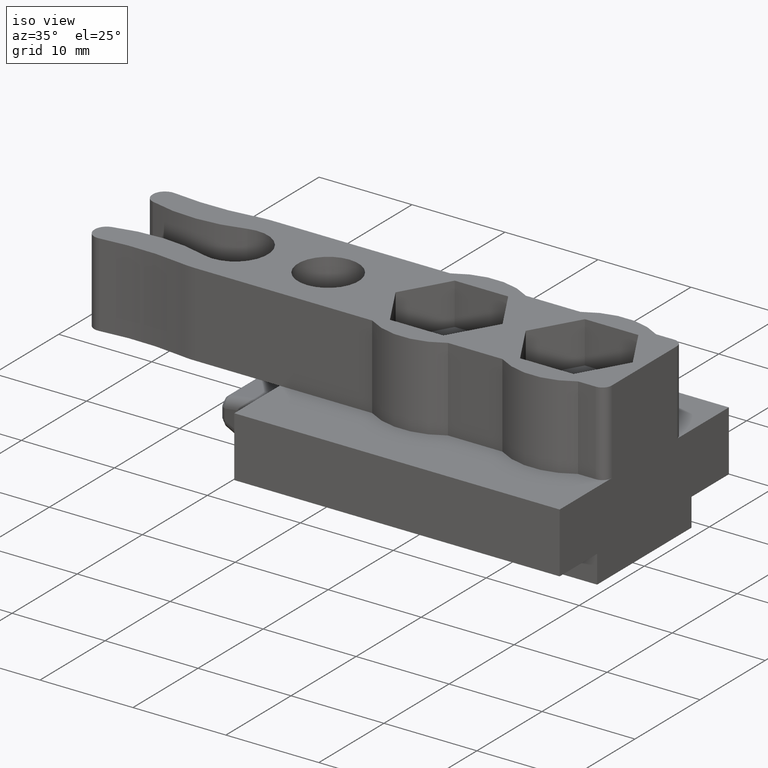
[diagram: clean part render]
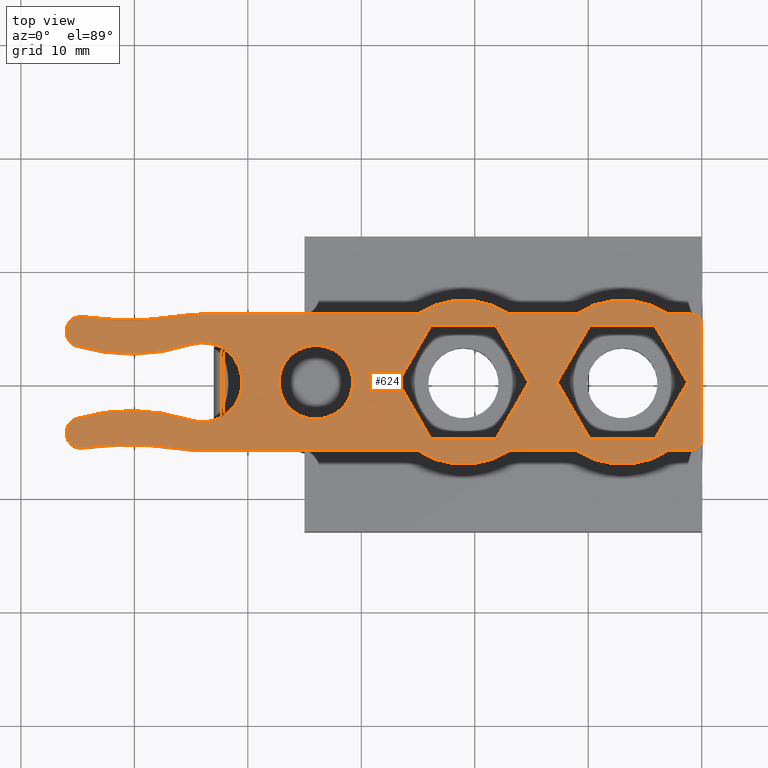
[diagram: tour spotlight — one face highlighted and labeled with its STEP entity id]
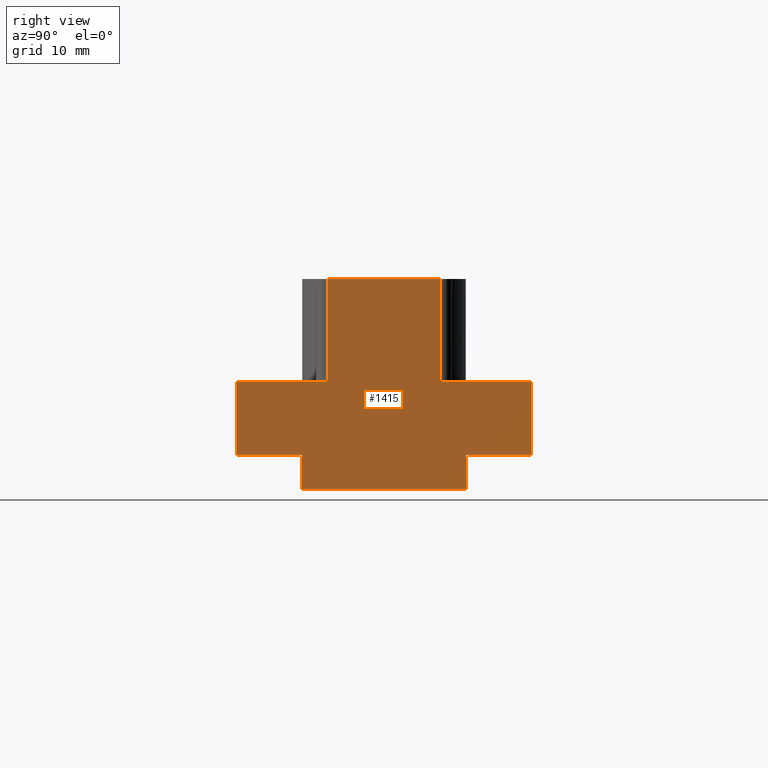
[diagram: tour spotlight — one face highlighted and labeled with its STEP entity id]
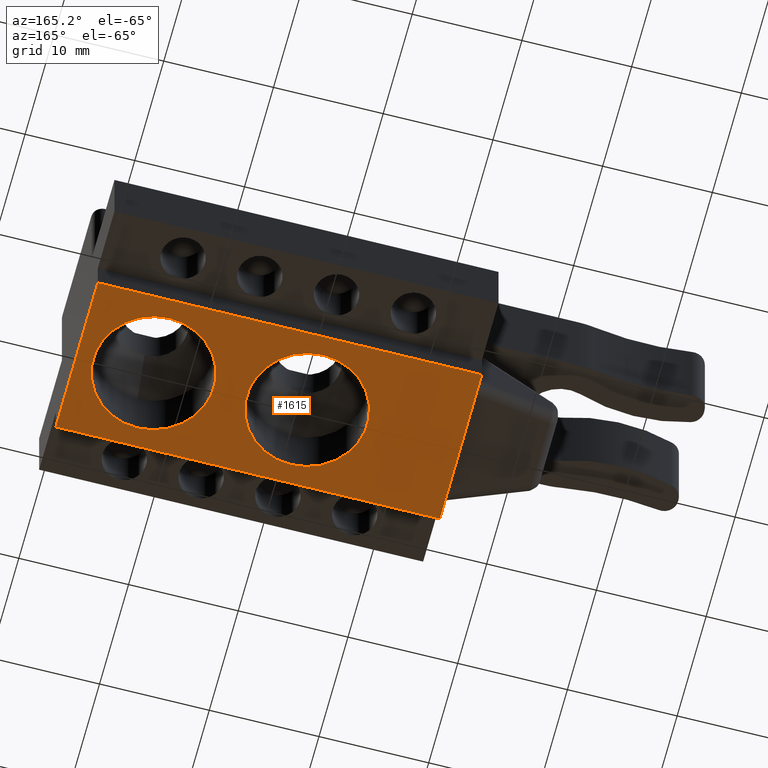
[diagram: tour spotlight — one face highlighted and labeled with its STEP entity id]
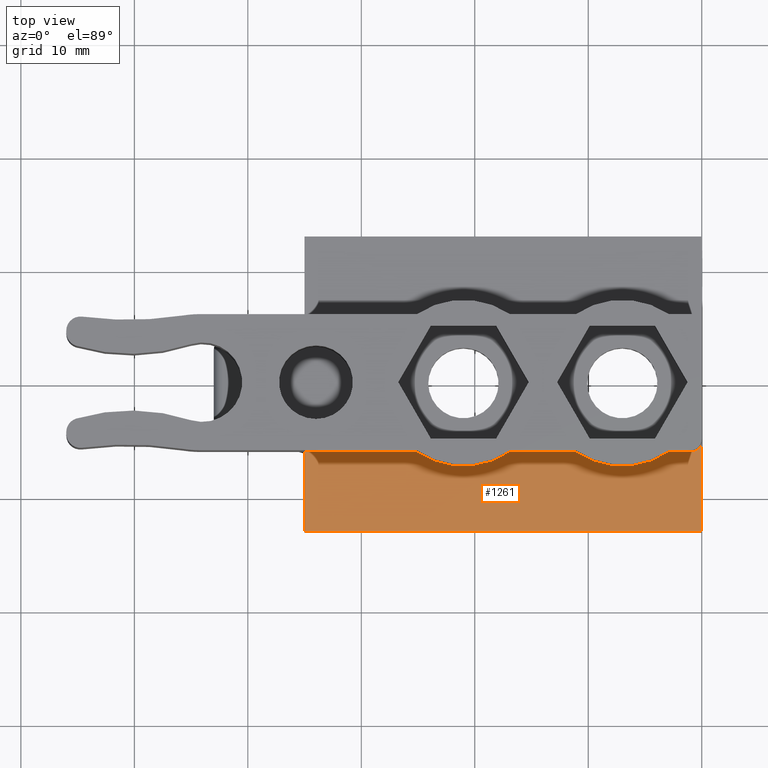
[diagram: tour spotlight — one face highlighted and labeled with its STEP entity id]
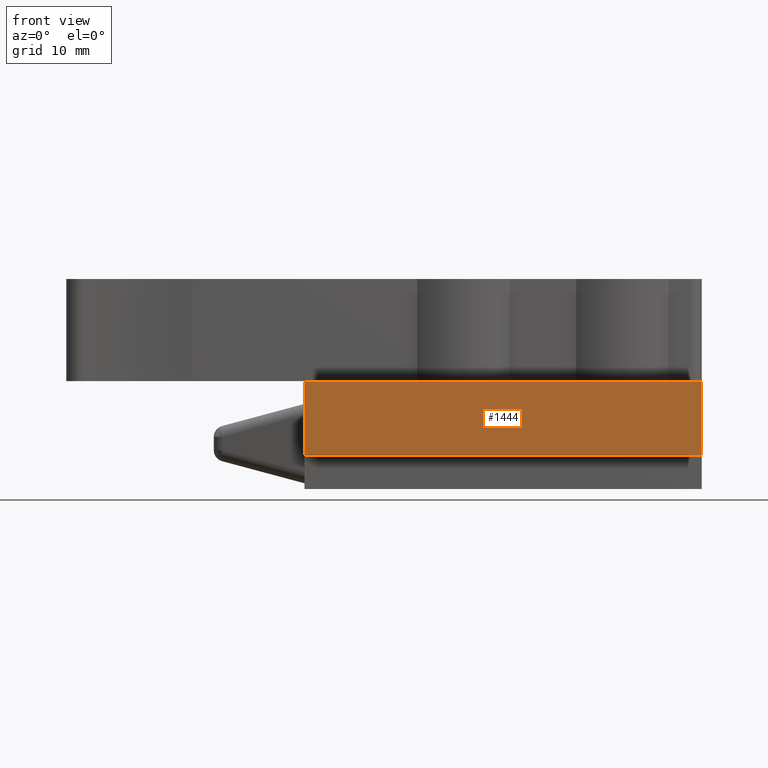
[diagram: tour spotlight — one face highlighted and labeled with its STEP entity id]
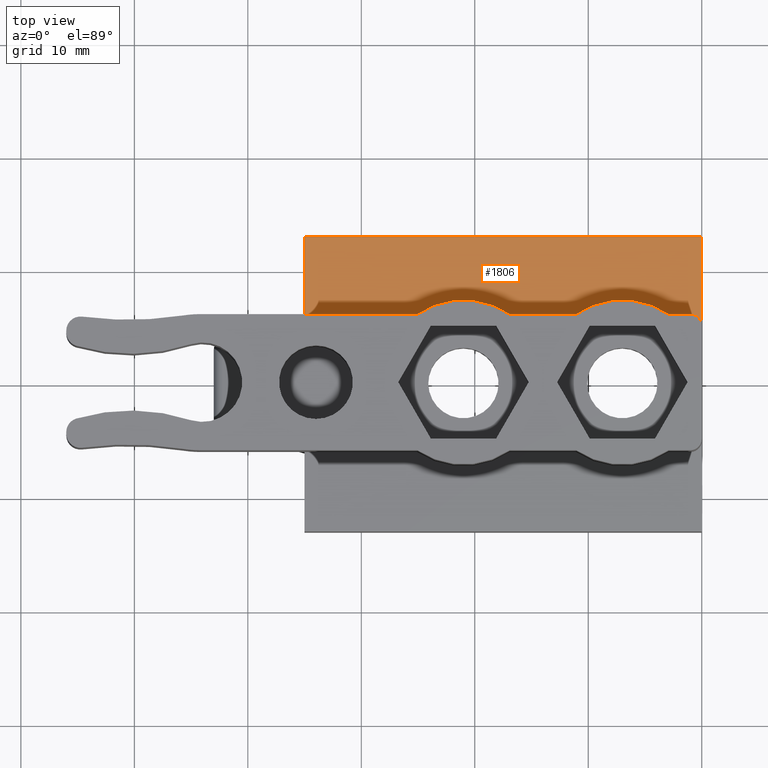
[diagram: tour spotlight — one face highlighted and labeled with its STEP entity id]
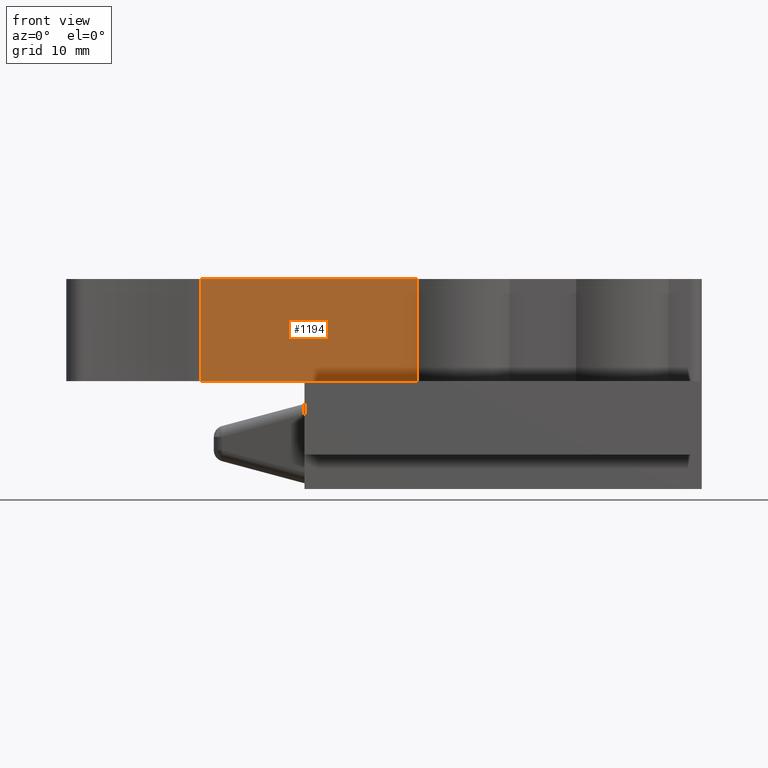
[diagram: tour spotlight — one face highlighted and labeled with its STEP entity id]
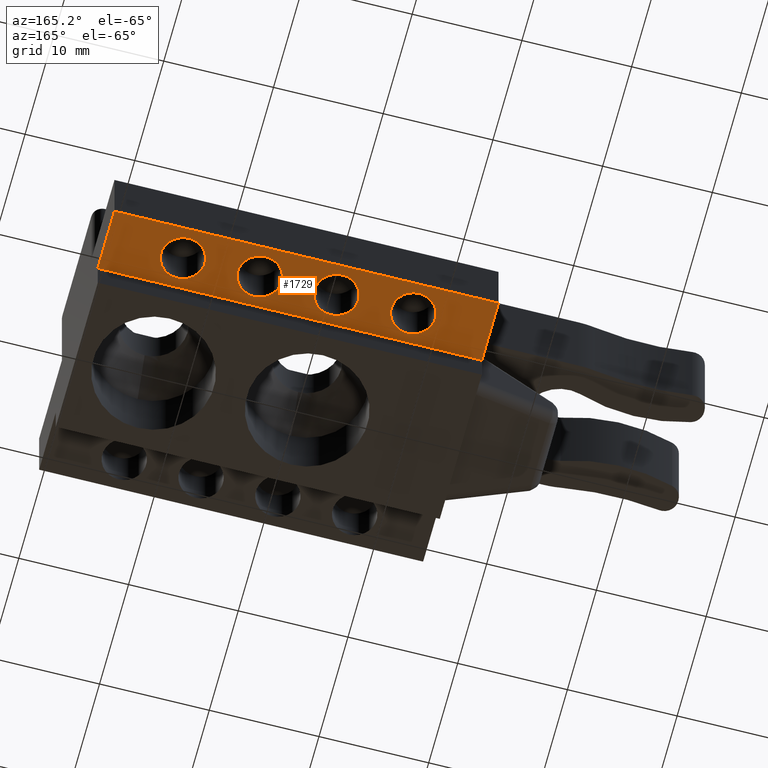
[diagram: tour spotlight — one face highlighted and labeled with its STEP entity id]
A machine part: a face-by-face anatomy tour. The part has 93 B-rep faces; the first image is the clean iso view, then the 8 largest visible faces are spotlighted one at a time (largest first), each with its STEP entity span.

Face 1 — top view, entity #624. In plain terms, the highlighted planar face has unit normal (0, 0, 1).
Definition (entity closure, byte-faithful):
#231=CARTESIAN_POINT('',(-45.000000889447996,-3.354101736757125,18.500000000000000));
#232=VERTEX_POINT('',#231);
#239=CARTESIAN_POINT('',(-45.000000889447904,3.354101736757164,18.500000000000000));
#240=VERTEX_POINT('',#239);
#241=CARTESIAN_POINT('',(-44.000000119706897,4.440892E-015,18.500000000000000));
#242=DIRECTION('',(0.0,0.0,-1.0));
#243=DIRECTION('',(-1.0,0.0,0.0));
#244=AXIS2_PLACEMENT_3D('',#241,#242,#243);
#245=CIRCLE('',#244,3.500000000000000);
#246=EDGE_CURVE('',#240,#232,#245,.T.);
#271=CARTESIAN_POINT('',(-55.108938845946696,-3.205488744432877,18.500000000000000));
#272=VERTEX_POINT('',#271);
#279=CARTESIAN_POINT('',(-50.289714340769798,-19.281571032246909,18.500000000000000));
#280=DIRECTION('',(0.0,0.0,1.0));
#281=DIRECTION('',(-1.0,0.0,0.0));
#282=AXIS2_PLACEMENT_3D('',#279,#280,#281);
#283=CIRCLE('',#282,16.782888504541301);
#284=EDGE_CURVE('',#232,#272,#283,.T.);
#290=CARTESIAN_POINT('',(-58.799999999999997,-7.957519532952130,18.500000000000000));
#291=DIRECTION('',(0.0,0.0,1.0));
#292=DIRECTION('',(1.0,0.0,0.0));
#293=AXIS2_PLACEMENT_3D('',#290,#291,#292);
#294=PLANE('',#293);
#295=CARTESIAN_POINT('',(-56.0,4.535734539249987,18.500000000000000));
#296=VERTEX_POINT('',#295);
#297=CARTESIAN_POINT('',(-56.0,4.402845376715225,18.500000000000000));
#298=VERTEX_POINT('',#297);
#299=CARTESIAN_POINT('',(-56.0,4.535734539249987,18.500000000000000));
#300=DIRECTION('',(0.0,-1.0,0.0));
#301=VECTOR('',#300,0.132889162534762);
#302=LINE('',#299,#301);
#303=EDGE_CURVE('',#296,#298,#302,.T.);
#304=ORIENTED_EDGE('',*,*,#303,.T.);
#305=CARTESIAN_POINT('',(-55.108938845946696,3.205488744432884,18.500000000000000));
#306=VERTEX_POINT('',#305);
#307=CARTESIAN_POINT('',(-54.750000000000000,4.402845376715225,18.500000000000000));
#308=DIRECTION('',(0.0,0.0,1.0));
#309=DIRECTION('',(1.0,0.0,0.0));
#310=AXIS2_PLACEMENT_3D('',#307,#308,#309);
#311=CIRCLE('',#310,1.250000000000000);
#312=EDGE_CURVE('',#298,#306,#311,.T.);
#313=ORIENTED_EDGE('',*,*,#312,.T.);
#314=CARTESIAN_POINT('',(-50.289714340769798,19.281571032246994,18.500000000000000));
#315=DIRECTION('',(0.0,0.0,1.0));
#316=DIRECTION('',(-1.0,0.0,0.0));
#317=AXIS2_PLACEMENT_3D('',#314,#315,#316);
#318=CIRCLE('',#317,16.782888504541301);
#319=EDGE_CURVE('',#306,#240,#318,.T.);
#320=ORIENTED_EDGE('',*,*,#319,.T.);
#321=ORIENTED_EDGE('',*,*,#246,.T.);
#322=ORIENTED_EDGE('',*,*,#284,.T.);
#323=CARTESIAN_POINT('',(-56.0,-4.402845376715215,18.500000000000000));
#324=VERTEX_POINT('',#323);
#325=CARTESIAN_POINT('',(-54.750000000000000,-4.402845376715215,18.500000000000000));
#326=DIRECTION('',(0.0,0.0,1.0));
#327=DIRECTION('',(1.0,0.0,0.0));
#328=AXIS2_PLACEMENT_3D('',#325,#326,#327);
#329=CIRCLE('',#328,1.250000000000000);
#330=EDGE_CURVE('',#272,#324,#329,.T.);
#331=ORIENTED_EDGE('',*,*,#330,.T.);
#332=CARTESIAN_POINT('',(-56.0,-4.535734539249976,18.500000000000000));
#333=VERTEX_POINT('',#332);
#334=CARTESIAN_POINT('',(-56.0,-4.402845376715217,18.500000000000000));
#335=DIRECTION('',(0.0,-1.0,0.0));
#336=VECTOR('',#335,0.132889162534759);
#337=LINE('',#334,#336);
#338=EDGE_CURVE('',#324,#333,#337,.T.);
#339=ORIENTED_EDGE('',*,*,#338,.T.);
#340=CARTESIAN_POINT('',(-54.582677157082500,-5.774485146207605,18.500000000000000));
#341=VERTEX_POINT('',#340);
#342=CARTESIAN_POINT('',(-54.750000000000000,-4.535734539249976,18.500000000000000));
#343=DIRECTION('',(0.0,0.0,1.0));
#344=DIRECTION('',(1.0,0.0,0.0));
#345=AXIS2_PLACEMENT_3D('',#342,#343,#344);
#346=CIRCLE('',#345,1.250000000000000);
#347=EDGE_CURVE('',#333,#341,#346,.T.);
#348=ORIENTED_EDGE('',*,*,#347,.T.);
#349=CARTESIAN_POINT('',(-45.722203208436099,-5.876543194964304,18.500000000000000));
#350=VERTEX_POINT('',#349);
#351=CARTESIAN_POINT('',(-50.500000444723796,-35.999995108038405,18.500000000000000));
#352=DIRECTION('',(0.0,0.0,1.0));
#353=DIRECTION('',(-1.0,0.0,0.0));
#354=AXIS2_PLACEMENT_3D('',#351,#352,#353);
#355=CIRCLE('',#354,30.499995108038398);
#356=EDGE_CURVE('',#350,#341,#355,.T.);
#357=ORIENTED_EDGE('',*,*,#356,.F.);
#358=CARTESIAN_POINT('',(-44.155712060039704,-6.000000000000005,18.500000000000000));
#359=VERTEX_POINT('',#358);
#360=CARTESIAN_POINT('',(-44.155712060039704,3.999999999999998,18.500000000000000));
#361=DIRECTION('',(0.0,0.0,1.0));
#362=DIRECTION('',(1.0,0.0,0.0));
#363=AXIS2_PLACEMENT_3D('',#360,#361,#362);
#364=CIRCLE('',#363,10.0);
#365=EDGE_CURVE('',#350,#359,#364,.T.);
#366=ORIENTED_EDGE('',*,*,#365,.T.);
#367=CARTESIAN_POINT('',(-25.069705149024959,-6.000000000000005,18.500000000000000));
#368=VERTEX_POINT('',#367);
#369=CARTESIAN_POINT('',(-25.069705149024959,-6.000000000000005,18.500000000000000));
#370=DIRECTION('',(-1.0,0.0,0.0));
#371=VECTOR('',#370,19.086006911014746);
#372=LINE('',#369,#371);
#373=EDGE_CURVE('',#368,#359,#372,.T.);
#374=ORIENTED_EDGE('',*,*,#373,.F.);
#375=CARTESIAN_POINT('',(-16.930294850975098,-6.000000000000005,18.500000000000000));
#376=VERTEX_POINT('',#375);
#377=CARTESIAN_POINT('',(-21.000000000000028,4.440892E-015,18.500000000000000));
#378=DIRECTION('',(0.0,0.0,1.0));
#379=DIRECTION('',(1.0,0.0,0.0));
#380=AXIS2_PLACEMENT_3D('',#377,#378,#379);
#381=CIRCLE('',#380,7.250000000000000);
#382=EDGE_CURVE('',#368,#376,#381,.T.);
#383=ORIENTED_EDGE('',*,*,#382,.T.);
#384=CARTESIAN_POINT('',(-11.069705149024998,-6.000000000000005,18.500000000000000));
#385=VERTEX_POINT('',#384);
#386=CARTESIAN_POINT('',(-11.069705149024998,-6.000000000000005,18.500000000000000));
#387=DIRECTION('',(-1.0,0.0,0.0));
#388=VECTOR('',#387,5.860589701950101);
#389=LINE('',#386,#388);
#390=EDGE_CURVE('',#385,#376,#389,.T.);
#391=ORIENTED_EDGE('',*,*,#390,.F.);
#392=CARTESIAN_POINT('',(-2.930294850975095,-6.000000000000005,18.500000000000000));
#393=VERTEX_POINT('',#392);
#394=CARTESIAN_POINT('',(-7.0,4.440892E-015,18.500000000000000));
#395=DIRECTION('',(0.0,0.0,1.0));
#396=DIRECTION('',(1.0,0.0,0.0));
#397=AXIS2_PLACEMENT_3D('',#394,#395,#396);
#398=CIRCLE('',#397,7.250000000000000);
#399=EDGE_CURVE('',#385,#393,#398,.T.);
#400=ORIENTED_EDGE('',*,*,#399,.T.);
#401=CARTESIAN_POINT('',(-1.0,-6.000000000000005,18.500000000000000));
#402=VERTEX_POINT('',#401);
#403=CARTESIAN_POINT('',(-2.930294850975095,-6.000000000000005,18.500000000000000));
#404=DIRECTION('',(1.0,0.0,0.0));
#405=VECTOR('',#404,1.930294850975095);
#406=LINE('',#403,#405);
#407=EDGE_CURVE('',#393,#402,#406,.T.);
#408=ORIENTED_EDGE('',*,*,#407,.T.);
#409=CARTESIAN_POINT('',(0.0,-4.999999999999996,18.500000000000000));
#410=VERTEX_POINT('',#409);
#411=CARTESIAN_POINT('',(-1.0,-4.999999999999996,18.500000000000000));
#412=DIRECTION('',(0.0,0.0,1.0));
#413=DIRECTION('',(1.0,0.0,0.0));
#414=AXIS2_PLACEMENT_3D('',#411,#412,#413);
#415=CIRCLE('',#414,1.0);
#416=EDGE_CURVE('',#402,#410,#415,.T.);
#417=ORIENTED_EDGE('',*,*,#416,.T.);
#418=CARTESIAN_POINT('',(0.0,4.999999999999999,18.500000000000000));
#419=VERTEX_POINT('',#418);
#420=CARTESIAN_POINT('',(0.0,-4.999999999999996,18.500000000000000));
#421=DIRECTION('',(0.0,1.0,0.0));
#422=VECTOR('',#421,9.999999999999996);
#423=LINE('',#420,#422);
#424=EDGE_CURVE('',#410,#419,#423,.T.);
#425=ORIENTED_EDGE('',*,*,#424,.T.);
#426=CARTESIAN_POINT('',(-1.0,6.000000000000004,18.500000000000000));
#427=VERTEX_POINT('',#426);
#428=CARTESIAN_POINT('',(-1.0,4.999999999999999,18.500000000000000));
#429=DIRECTION('',(0.0,0.0,1.0));
#430=DIRECTION('',(1.0,0.0,0.0));
#431=AXIS2_PLACEMENT_3D('',#428,#429,#430);
#432=CIRCLE('',#431,1.0);
#433=EDGE_CURVE('',#419,#427,#432,.T.);
#434=ORIENTED_EDGE('',*,*,#433,.T.);
#435=CARTESIAN_POINT('',(-2.930294850975095,6.000000000000004,18.500000000000000));
#436=VERTEX_POINT('',#435);
#437=CARTESIAN_POINT('',(-2.930294850975095,6.000000000000004,18.500000000000000));
#438=DIRECTION('',(1.0,0.0,0.0));
#439=VECTOR('',#438,1.930294850975095);
#440=LINE('',#437,#439);
#441=EDGE_CURVE('',#436,#427,#440,.T.);
#442=ORIENTED_EDGE('',*,*,#441,.F.);
#443=CARTESIAN_POINT('',(-11.069705149024998,6.000000000000004,18.500000000000000));
#444=VERTEX_POINT('',#443);
#445=CARTESIAN_POINT('',(-7.0,4.440892E-015,18.500000000000000));
#446=DIRECTION('',(0.0,0.0,-1.0));
#447=DIRECTION('',(1.0,0.0,0.0));
#448=AXIS2_PLACEMENT_3D('',#445,#446,#447);
#449=CIRCLE('',#448,7.250000000000000);
#450=EDGE_CURVE('',#444,#436,#449,.T.);
#451=ORIENTED_EDGE('',*,*,#450,.F.);
#452=CARTESIAN_POINT('',(-16.930294850975109,6.000000000000004,18.500000000000000));
#453=VERTEX_POINT('',#452);
#454=CARTESIAN_POINT('',(-16.930294850975109,6.000000000000004,18.500000000000000));
#455=DIRECTION('',(1.0,0.0,0.0));
#456=VECTOR('',#455,5.860589701950111);
#457=LINE('',#454,#456);
#458=EDGE_CURVE('',#453,#444,#457,.T.);
#459=ORIENTED_EDGE('',*,*,#458,.F.);
#460=CARTESIAN_POINT('',(-25.069705149024959,5.999999999999995,18.500000000000000));
#461=VERTEX_POINT('',#460);
#462=CARTESIAN_POINT('',(-21.000000000000028,-5.329071E-015,18.500000000000000));
#463=DIRECTION('',(0.0,0.0,-1.0));
#464=DIRECTION('',(1.0,0.0,0.0));
#465=AXIS2_PLACEMENT_3D('',#462,#463,#464);
#466=CIRCLE('',#465,7.250000000000000);
#467=EDGE_CURVE('',#461,#453,#466,.T.);
#468=ORIENTED_EDGE('',*,*,#467,.F.);
#469=CARTESIAN_POINT('',(-44.155712060039804,5.999999999999995,18.500000000000000));
#470=VERTEX_POINT('',#469);
#471=CARTESIAN_POINT('',(-25.069705149024959,5.999999999999995,18.500000000000000));
#472=DIRECTION('',(-1.0,0.0,0.0));
#473=VECTOR('',#472,19.086006911014845);
#474=LINE('',#471,#473);
#475=EDGE_CURVE('',#461,#470,#474,.T.);
#476=ORIENTED_EDGE('',*,*,#475,.T.);
#477=CARTESIAN_POINT('',(-45.722203208436198,5.876543194964304,18.500000000000000));
#478=VERTEX_POINT('',#477);
#479=CARTESIAN_POINT('',(-44.155712060039804,-4.000000000000004,18.500000000000000));
#480=DIRECTION('',(0.0,0.0,1.0));
#481=DIRECTION('',(1.0,0.0,0.0));
#482=AXIS2_PLACEMENT_3D('',#479,#480,#481);
#483=CIRCLE('',#482,10.0);
#484=EDGE_CURVE('',#470,#478,#483,.T.);
#485=ORIENTED_EDGE('',*,*,#484,.T.);
#486=CARTESIAN_POINT('',(-54.582677157082500,5.774485146207654,18.500000000000000));
#487=VERTEX_POINT('',#486);
#488=CARTESIAN_POINT('',(-50.500000444723796,35.999995108038391,18.500000000000000));
#489=DIRECTION('',(0.0,0.0,1.0));
#490=DIRECTION('',(-1.0,0.0,0.0));
#491=AXIS2_PLACEMENT_3D('',#488,#489,#490);
#492=CIRCLE('',#491,30.499995108038398);
#493=EDGE_CURVE('',#487,#478,#492,.T.);
#494=ORIENTED_EDGE('',*,*,#493,.F.);
#495=CARTESIAN_POINT('',(-54.750000000000000,4.535734539249987,18.500000000000000));
#496=DIRECTION('',(0.0,0.0,1.0));
#497=DIRECTION('',(1.0,0.0,0.0));
#498=AXIS2_PLACEMENT_3D('',#495,#496,#497);
#499=CIRCLE('',#498,1.250000000000000);
#500=EDGE_CURVE('',#487,#296,#499,.T.);
#501=ORIENTED_EDGE('',*,*,#500,.T.);
#502=EDGE_LOOP('',(#304,#313,#320,#321,#322,#331,#339,#348,#357,#366,#374,#383,#391,#400,#408,#417,#425,#434,#442,#451,#459,#468,#476,#485,#494,#501));
#503=FACE_OUTER_BOUND('',#502,.T.);
#504=CARTESIAN_POINT('',(-23.875000000000036,4.979646071760523,18.500000000000000));
#505=VERTEX_POINT('',#504);
#506=CARTESIAN_POINT('',(-26.750000000000028,-5.329071E-015,18.500000000000000));
#507=VERTEX_POINT('',#506);
#508=CARTESIAN_POINT('',(-23.875000000000036,4.979646071760522,18.500000000000000));
#509=DIRECTION('',(-0.500000000000000,-0.866025403784439,0.0));
#510=VECTOR('',#509,5.750000000000001);
#511=LINE('',#508,#510);
#512=EDGE_CURVE('',#505,#507,#511,.T.);
#513=ORIENTED_EDGE('',*,*,#512,.F.);
#514=CARTESIAN_POINT('',(-18.125000000000036,4.979646071760520,18.500000000000000));
#515=VERTEX_POINT('',#514);
#516=CARTESIAN_POINT('',(-18.125000000000036,4.979646071760523,18.500000000000000));
#517=DIRECTION('',(-1.0,0.0,0.0));
#518=VECTOR('',#517,5.750000000000000);
#519=LINE('',#516,#518);
#520=EDGE_CURVE('',#515,#505,#519,.T.);
#521=ORIENTED_EDGE('',*,*,#520,.F.);
#522=CARTESIAN_POINT('',(-15.250000000000028,4.440892E-015,18.500000000000000));
#523=VERTEX_POINT('',#522);
#524=CARTESIAN_POINT('',(-15.250000000000028,4.440892E-015,18.500000000000000));
#525=DIRECTION('',(-0.500000000000001,0.866025403784438,0.0));
#526=VECTOR('',#525,5.750000000000001);
#527=LINE('',#524,#526);
#528=EDGE_CURVE('',#523,#515,#527,.T.);
#529=ORIENTED_EDGE('',*,*,#528,.F.);
#530=CARTESIAN_POINT('',(-18.125000000000028,-4.979646071760527,18.500000000000000));
#531=VERTEX_POINT('',#530);
#532=CARTESIAN_POINT('',(-18.125000000000028,-4.979646071760527,18.500000000000000));
#533=DIRECTION('',(0.500000000000000,0.866025403784439,0.0));
#534=VECTOR('',#533,5.750000000000009);
#535=LINE('',#532,#534);
#536=EDGE_CURVE('',#531,#523,#535,.T.);
#537=ORIENTED_EDGE('',*,*,#536,.F.);
#538=CARTESIAN_POINT('',(-23.875000000000028,-4.979646071760527,18.500000000000000));
#539=VERTEX_POINT('',#538);
#540=CARTESIAN_POINT('',(-23.875000000000028,-4.979646071760527,18.500000000000000));
#541=DIRECTION('',(1.0,0.0,0.0));
#542=VECTOR('',#541,5.750000000000000);
#543=LINE('',#540,#542);
#544=EDGE_CURVE('',#539,#531,#543,.T.);
#545=ORIENTED_EDGE('',*,*,#544,.F.);
#546=CARTESIAN_POINT('',(-26.750000000000028,-5.329071E-015,18.500000000000000));
#547=DIRECTION('',(0.500000000000001,-0.866025403784438,0.0));
#548=VECTOR('',#547,5.750000000000001);
#549=LINE('',#546,#548);
#550=EDGE_CURVE('',#507,#539,#549,.T.);
#551=ORIENTED_EDGE('',*,*,#550,.F.);
#552=EDGE_LOOP('',(#513,#521,#529,#537,#545,#551));
#553=FACE_BOUND('',#552,.T.);
#554=CARTESIAN_POINT('',(-12.749999999999998,-5.329071E-015,18.500000000000000));
#555=VERTEX_POINT('',#554);
#556=CARTESIAN_POINT('',(-9.874999999999998,-4.979646071760527,18.500000000000000));
#557=VERTEX_POINT('',#556);
#558=CARTESIAN_POINT('',(-12.749999999999998,-5.329071E-015,18.500000000000000));
#559=DIRECTION('',(0.500000000000001,-0.866025403784438,0.0));
#560=VECTOR('',#559,5.749999999999999);
#561=LINE('',#558,#560);
#562=EDGE_CURVE('',#555,#557,#561,.T.);
#563=ORIENTED_EDGE('',*,*,#562,.F.);
#564=CARTESIAN_POINT('',(-9.874999999999998,4.979646071760520,18.500000000000000));
#565=VERTEX_POINT('',#564);
#566=CARTESIAN_POINT('',(-9.875000000000000,4.979646071760521,18.500000000000000));
#567=DIRECTION('',(-0.500000000000000,-0.866025403784439,0.0));
#568=VECTOR('',#567,5.750000000000003);
#569=LINE('',#566,#568);
#570=EDGE_CURVE('',#565,#555,#569,.T.);
#571=ORIENTED_EDGE('',*,*,#570,.F.);
#572=CARTESIAN_POINT('',(-4.125000000000000,4.979646071760523,18.500000000000000));
#573=VERTEX_POINT('',#572);
#574=CARTESIAN_POINT('',(-4.125000000000000,4.979646071760523,18.500000000000000));
#575=DIRECTION('',(-1.0,0.0,0.0));
#576=VECTOR('',#575,5.749999999999998);
#577=LINE('',#574,#576);
#578=EDGE_CURVE('',#573,#565,#577,.T.);
#579=ORIENTED_EDGE('',*,*,#578,.F.);
#580=CARTESIAN_POINT('',(-1.250000000000000,4.440892E-015,18.500000000000000));
#581=VERTEX_POINT('',#580);
#582=CARTESIAN_POINT('',(-1.250000000000000,4.440892E-015,18.500000000000000));
#583=DIRECTION('',(-0.500000000000000,0.866025403784438,0.0));
#584=VECTOR('',#583,5.749999999999995);
#585=LINE('',#582,#584);
#586=EDGE_CURVE('',#581,#573,#585,.T.);
#587=ORIENTED_EDGE('',*,*,#586,.F.);
#588=CARTESIAN_POINT('',(-4.125000000000000,-4.979646071760527,18.500000000000000));
#589=VERTEX_POINT('',#588);
#590=CARTESIAN_POINT('',(-4.125000000000000,-4.979646071760527,18.500000000000000));
#591=DIRECTION('',(0.500000000000001,0.866025403784438,0.0));
#592=VECTOR('',#591,5.750000000000009);
#593=LINE('',#590,#592);
#594=EDGE_CURVE('',#589,#581,#593,.T.);
#595=ORIENTED_EDGE('',*,*,#594,.F.);
#596=CARTESIAN_POINT('',(-9.874999999999998,-4.979646071760527,18.500000000000000));
#597=DIRECTION('',(1.0,0.0,0.0));
#598=VECTOR('',#597,5.749999999999998);
#599=LINE('',#596,#598);
#600=EDGE_CURVE('',#557,#589,#599,.T.);
#601=ORIENTED_EDGE('',*,*,#600,.F.);
#602=EDGE_LOOP('',(#563,#571,#579,#587,#595,#601));
#603=FACE_BOUND('',#602,.T.);
#604=CARTESIAN_POINT('',(-34.0,-3.249999999999996,18.500000000000000));
#605=VERTEX_POINT('',#604);
#606=CARTESIAN_POINT('',(-34.0,3.250000000000004,18.500000000000000));
#607=VERTEX_POINT('',#606);
#608=CARTESIAN_POINT('',(-34.0,4.440892E-015,18.500000000000000));
#609=DIRECTION('',(0.0,0.0,-1.0));
#610=DIRECTION('',(0.0,-1.0,0.0));
#611=AXIS2_PLACEMENT_3D('',#608,#609,#610);
#612=CIRCLE('',#611,3.250000000000000);
#613=EDGE_CURVE('',#605,#607,#612,.T.);
#614=ORIENTED_EDGE('',*,*,#613,.T.);
#615=CARTESIAN_POINT('',(-34.0,4.440892E-015,18.500000000000000));
#616=DIRECTION('',(0.0,0.0,-1.0));
#617=DIRECTION('',(0.0,-1.0,0.0));
#618=AXIS2_PLACEMENT_3D('',#615,#616,#617);
#619=CIRCLE('',#618,3.250000000000000);
#620=EDGE_CURVE('',#607,#605,#619,.T.);
#621=ORIENTED_EDGE('',*,*,#620,.T.);
#622=EDGE_LOOP('',(#614,#621));
#623=FACE_BOUND('',#622,.T.);
#624=ADVANCED_FACE('',(#503,#553,#603,#623),#294,.T.);

Face 2 — right view, entity #1415. In plain terms, the highlighted planar face has unit normal (1, 0, 0).
Definition (entity closure, byte-faithful):
#409=CARTESIAN_POINT('',(0.0,-4.999999999999996,18.500000000000000));
#410=VERTEX_POINT('',#409);
#418=CARTESIAN_POINT('',(0.0,4.999999999999999,18.500000000000000));
#419=VERTEX_POINT('',#418);
#420=CARTESIAN_POINT('',(0.0,-4.999999999999996,18.500000000000000));
#421=DIRECTION('',(0.0,1.0,0.0));
#422=VECTOR('',#421,9.999999999999996);
#423=LINE('',#420,#422);
#424=EDGE_CURVE('',#410,#419,#423,.T.);
#1200=CARTESIAN_POINT('',(0.0,-13.000000000000007,9.500000000000000));
#1201=VERTEX_POINT('',#1200);
#1208=CARTESIAN_POINT('',(0.0,-4.999999999999996,9.500000000000000));
#1209=VERTEX_POINT('',#1208);
#1210=CARTESIAN_POINT('',(0.0,-13.000000000000007,9.500000000000000));
#1211=DIRECTION('',(0.0,1.0,0.0));
#1212=VECTOR('',#1211,8.000000000000011);
#1213=LINE('',#1210,#1212);
#1214=EDGE_CURVE('',#1201,#1209,#1213,.T.);
#1330=CARTESIAN_POINT('',(0.0,-14.300000000000008,19.425000000000001));
#1331=DIRECTION('',(1.0,0.0,0.0));
#1332=DIRECTION('',(0.0,0.0,-1.0));
#1333=AXIS2_PLACEMENT_3D('',#1330,#1331,#1332);
#1334=PLANE('',#1333);
#1335=ORIENTED_EDGE('',*,*,#424,.F.);
#1336=CARTESIAN_POINT('',(0.0,-4.999999999999996,18.500000000000000));
#1337=DIRECTION('',(0.0,0.0,-1.0));
#1338=VECTOR('',#1337,9.0);
#1339=LINE('',#1336,#1338);
#1340=EDGE_CURVE('',#410,#1209,#1339,.T.);
#1341=ORIENTED_EDGE('',*,*,#1340,.T.);
#1342=ORIENTED_EDGE('',*,*,#1214,.F.);
#1343=CARTESIAN_POINT('',(0.0,-13.000000000000007,3.0));
#1344=VERTEX_POINT('',#1343);
#1345=CARTESIAN_POINT('',(0.0,-13.000000000000007,3.0));
#1346=DIRECTION('',(0.0,0.0,1.0));
#1347=VECTOR('',#1346,6.500000000000000);
#1348=LINE('',#1345,#1347);
#1349=EDGE_CURVE('',#1344,#1201,#1348,.T.);
#1350=ORIENTED_EDGE('',*,*,#1349,.F.);
#1351=CARTESIAN_POINT('',(0.0,-7.250000000000005,3.0));
#1352=VERTEX_POINT('',#1351);
#1353=CARTESIAN_POINT('',(0.0,-7.250000000000005,3.0));
#1354=DIRECTION('',(0.0,-1.0,0.0));
#1355=VECTOR('',#1354,5.750000000000002);
#1356=LINE('',#1353,#1355);
#1357=EDGE_CURVE('',#1352,#1344,#1356,.T.);
#1358=ORIENTED_EDGE('',*,*,#1357,.F.);
#1359=CARTESIAN_POINT('',(0.0,-7.250000000000005,0.0));
#1360=VERTEX_POINT('',#1359);
#1361=CARTESIAN_POINT('',(0.0,-7.250000000000005,0.0));
#1362=DIRECTION('',(0.0,0.0,1.0));
#1363=VECTOR('',#1362,3.0);
#1364=LINE('',#1361,#1363);
#1365=EDGE_CURVE('',#1360,#1352,#1364,.T.);
#1366=ORIENTED_EDGE('',*,*,#1365,.F.);
#1367=CARTESIAN_POINT('',(0.0,7.250000000000004,0.0));
#1368=VERTEX_POINT('',#1367);
#1369=CARTESIAN_POINT('',(0.0,-7.250000000000005,0.0));
#1370=DIRECTION('',(0.0,1.0,0.0));
#1371=VECTOR('',#1370,14.500000000000011);
#1372=LINE('',#1369,#1371);
#1373=EDGE_CURVE('',#1360,#1368,#1372,.T.);
#1374=ORIENTED_EDGE('',*,*,#1373,.T.);
#1375=CARTESIAN_POINT('',(0.0,7.250000000000004,3.0));
#1376=VERTEX_POINT('',#1375);
#1377=CARTESIAN_POINT('',(0.0,7.250000000000004,0.0));
#1378=DIRECTION('',(0.0,0.0,1.0));
#1379=VECTOR('',#1378,3.0);
#1380=LINE('',#1377,#1379);
#1381=EDGE_CURVE('',#1368,#1376,#1380,.T.);
#1382=ORIENTED_EDGE('',*,*,#1381,.T.);
#1383=CARTESIAN_POINT('',(0.0,13.000000000000004,3.0));
#1384=VERTEX_POINT('',#1383);
#1385=CARTESIAN_POINT('',(0.0,7.250000000000004,3.0));
#1386=DIRECTION('',(0.0,1.0,0.0));
#1387=VECTOR('',#1386,5.749999999999999);
#1388=LINE('',#1385,#1387);
#1389=EDGE_CURVE('',#1376,#1384,#1388,.T.);
#1390=ORIENTED_EDGE('',*,*,#1389,.T.);
#1391=CARTESIAN_POINT('',(0.0,13.000000000000004,9.500000000000000));
#1392=VERTEX_POINT('',#1391);
#1393=CARTESIAN_POINT('',(0.0,13.000000000000004,3.0));
#1394=DIRECTION('',(0.0,0.0,1.0));
#1395=VECTOR('',#1394,6.500000000000000);
#1396=LINE('',#1393,#1395);
#1397=EDGE_CURVE('',#1384,#1392,#1396,.T.);
#1398=ORIENTED_EDGE('',*,*,#1397,.T.);
#1399=CARTESIAN_POINT('',(0.0,4.999999999999999,9.500000000000000));
#1400=VERTEX_POINT('',#1399);
#1401=CARTESIAN_POINT('',(0.0,13.000000000000004,9.500000000000000));
#1402=DIRECTION('',(0.0,-1.0,0.0));
#1403=VECTOR('',#1402,8.000000000000004);
#1404=LINE('',#1401,#1403);
#1405=EDGE_CURVE('',#1392,#1400,#1404,.T.);
#1406=ORIENTED_EDGE('',*,*,#1405,.T.);
#1407=CARTESIAN_POINT('',(0.0,4.999999999999999,9.500000000000000));
#1408=DIRECTION('',(0.0,0.0,1.0));
#1409=VECTOR('',#1408,9.0);
#1410=LINE('',#1407,#1409);
#1411=EDGE_CURVE('',#1400,#419,#1410,.T.);
#1412=ORIENTED_EDGE('',*,*,#1411,.T.);
#1413=EDGE_LOOP('',(#1335,#1341,#1342,#1350,#1358,#1366,#1374,#1382,#1390,#1398,#1406,#1412));
#1414=FACE_OUTER_BOUND('',#1413,.T.);
#1415=ADVANCED_FACE('',(#1414),#1334,.T.);

Face 3 — auxiliary view, entity #1615. In plain terms, the highlighted planar face has unit normal (0, 0, 1).
Definition (entity closure, byte-faithful):
#49=CARTESIAN_POINT('',(-35.0,7.250000000000004,0.0));
#50=VERTEX_POINT('',#49);
#57=CARTESIAN_POINT('',(-35.0,-7.250000000000005,0.0));
#58=VERTEX_POINT('',#57);
#59=CARTESIAN_POINT('',(-35.0,7.250000000000004,0.0));
#60=DIRECTION('',(0.0,-1.0,0.0));
#61=VECTOR('',#60,14.500000000000009);
#62=LINE('',#59,#61);
#63=EDGE_CURVE('',#50,#58,#62,.T.);
#1359=CARTESIAN_POINT('',(0.0,-7.250000000000005,0.0));
#1360=VERTEX_POINT('',#1359);
#1367=CARTESIAN_POINT('',(0.0,7.250000000000004,0.0));
#1368=VERTEX_POINT('',#1367);
#1369=CARTESIAN_POINT('',(0.0,-7.250000000000005,0.0));
#1370=DIRECTION('',(0.0,1.0,0.0));
#1371=VECTOR('',#1370,14.500000000000011);
#1372=LINE('',#1369,#1371);
#1373=EDGE_CURVE('',#1360,#1368,#1372,.T.);
#1547=CARTESIAN_POINT('',(-35.0,-7.250000000000005,0.0));
#1548=DIRECTION('',(1.0,0.0,0.0));
#1549=VECTOR('',#1548,35.0);
#1550=LINE('',#1547,#1549);
#1551=EDGE_CURVE('',#58,#1360,#1550,.T.);
#1559=CARTESIAN_POINT('',(-56.0,-13.000000000000007,0.0));
#1560=DIRECTION('',(0.0,0.0,1.0));
#1561=DIRECTION('',(1.0,0.0,0.0));
#1562=AXIS2_PLACEMENT_3D('',#1559,#1560,#1561);
#1563=PLANE('',#1562);
#1564=ORIENTED_EDGE('',*,*,#1551,.F.);
#1565=ORIENTED_EDGE('',*,*,#63,.F.);
#1566=CARTESIAN_POINT('',(0.0,7.250000000000004,0.0));
#1567=DIRECTION('',(-1.0,0.0,0.0));
#1568=VECTOR('',#1567,35.0);
#1569=LINE('',#1566,#1568);
#1570=EDGE_CURVE('',#1368,#50,#1569,.T.);
#1571=ORIENTED_EDGE('',*,*,#1570,.F.);
#1572=ORIENTED_EDGE('',*,*,#1373,.F.);
#1573=EDGE_LOOP('',(#1564,#1565,#1571,#1572));
#1574=FACE_OUTER_BOUND('',#1573,.T.);
#1575=CARTESIAN_POINT('',(-7.0,5.500000000000004,0.0));
#1576=VERTEX_POINT('',#1575);
#1577=CARTESIAN_POINT('',(-7.0,-5.499999999999996,0.0));
#1578=VERTEX_POINT('',#1577);
#1579=CARTESIAN_POINT('',(-7.0,4.440892E-015,0.0));
#1580=DIRECTION('',(0.0,0.0,1.0));
#1581=DIRECTION('',(0.0,1.0,0.0));
#1582=AXIS2_PLACEMENT_3D('',#1579,#1580,#1581);
#1583=CIRCLE('',#1582,5.500000000000000);
#1584=EDGE_CURVE('',#1576,#1578,#1583,.T.);
#1585=ORIENTED_EDGE('',*,*,#1584,.T.);
#1586=CARTESIAN_POINT('',(-7.0,4.440892E-015,0.0));
#1587=DIRECTION('',(0.0,0.0,1.0));
#1588=DIRECTION('',(0.0,1.0,0.0));
#1589=AXIS2_PLACEMENT_3D('',#1586,#1587,#1588);
#1590=CIRCLE('',#1589,5.500000000000000);
#1591=EDGE_CURVE('',#1578,#1576,#1590,.T.);
#1592=ORIENTED_EDGE('',*,*,#1591,.T.);
#1593=EDGE_LOOP('',(#1585,#1592));
#1594=FACE_BOUND('',#1593,.T.);
#1595=CARTESIAN_POINT('',(-21.000000000000028,5.500000000000004,0.0));
#1596=VERTEX_POINT('',#1595);
#1597=CARTESIAN_POINT('',(-21.000000000000028,-5.499999999999996,0.0));
#1598=VERTEX_POINT('',#1597);
#1599=CARTESIAN_POINT('',(-21.000000000000028,4.440892E-015,0.0));
#1600=DIRECTION('',(0.0,0.0,1.0));
#1601=DIRECTION('',(0.0,1.0,0.0));
#1602=AXIS2_PLACEMENT_3D('',#1599,#1600,#1601);
#1603=CIRCLE('',#1602,5.500000000000000);
#1604=EDGE_CURVE('',#1596,#1598,#1603,.T.);
#1605=ORIENTED_EDGE('',*,*,#1604,.T.);
#1606=CARTESIAN_POINT('',(-21.000000000000028,4.440892E-015,0.0));
#1607=DIRECTION('',(0.0,0.0,1.0));
#1608=DIRECTION('',(0.0,1.0,0.0));
#1609=AXIS2_PLACEMENT_3D('',#1606,#1607,#1608);
#1610=CIRCLE('',#1609,5.500000000000000);
#1611=EDGE_CURVE('',#1598,#1596,#1610,.T.);
#1612=ORIENTED_EDGE('',*,*,#1611,.T.);
#1613=EDGE_LOOP('',(#1605,#1612));
#1614=FACE_BOUND('',#1613,.T.);
#1615=ADVANCED_FACE('',(#1574,#1594,#1614),#1563,.F.);

Face 4 — top view, entity #1261. In plain terms, the highlighted planar face has unit normal (0, 0, -1).
Definition (entity closure, byte-faithful):
#7=CARTESIAN_POINT('',(-35.0,-13.000000000000007,9.500000000000000));
#8=VERTEX_POINT('',#7);
#9=CARTESIAN_POINT('',(-35.0,-6.000000000000005,9.500000000000000));
#10=VERTEX_POINT('',#9);
#11=CARTESIAN_POINT('',(-35.0,-13.000000000000007,9.500000000000000));
#12=DIRECTION('',(0.0,1.0,0.0));
#13=VECTOR('',#12,7.000000000000002);
#14=LINE('',#11,#13);
#15=EDGE_CURVE('',#8,#10,#14,.T.);
#1178=CARTESIAN_POINT('',(-25.069705149024959,-6.000000000000005,9.500000000000000));
#1179=VERTEX_POINT('',#1178);
#1180=CARTESIAN_POINT('',(-35.0,-6.000000000000005,9.500000000000000));
#1181=DIRECTION('',(1.0,0.0,0.0));
#1182=VECTOR('',#1181,9.930294850975038);
#1183=LINE('',#1180,#1182);
#1184=EDGE_CURVE('',#10,#1179,#1183,.T.);
#1195=CARTESIAN_POINT('',(1.749999999999993,-13.400000000000009,9.500000000000000));
#1196=DIRECTION('',(0.0,0.0,-1.0));
#1197=DIRECTION('',(-1.0,0.0,0.0));
#1198=AXIS2_PLACEMENT_3D('',#1195,#1196,#1197);
#1199=PLANE('',#1198);
#1200=CARTESIAN_POINT('',(0.0,-13.000000000000007,9.500000000000000));
#1201=VERTEX_POINT('',#1200);
#1202=CARTESIAN_POINT('',(-35.0,-13.000000000000007,9.500000000000000));
#1203=DIRECTION('',(1.0,0.0,0.0));
#1204=VECTOR('',#1203,35.0);
#1205=LINE('',#1202,#1204);
#1206=EDGE_CURVE('',#8,#1201,#1205,.T.);
#1207=ORIENTED_EDGE('',*,*,#1206,.T.);
#1208=CARTESIAN_POINT('',(0.0,-4.999999999999996,9.500000000000000));
#1209=VERTEX_POINT('',#1208);
#1210=CARTESIAN_POINT('',(0.0,-13.000000000000007,9.500000000000000));
#1211=DIRECTION('',(0.0,1.0,0.0));
#1212=VECTOR('',#1211,8.000000000000011);
#1213=LINE('',#1210,#1212);
#1214=EDGE_CURVE('',#1201,#1209,#1213,.T.);
#1215=ORIENTED_EDGE('',*,*,#1214,.T.);
#1216=CARTESIAN_POINT('',(-1.0,-6.000000000000005,9.500000000000000));
#1217=VERTEX_POINT('',#1216);
#1218=CARTESIAN_POINT('',(-1.0,-4.999999999999996,9.500000000000000));
#1219=DIRECTION('',(0.0,0.0,-1.0));
#1220=DIRECTION('',(-1.0,0.0,0.0));
#1221=AXIS2_PLACEMENT_3D('',#1218,#1219,#1220);
#1222=CIRCLE('',#1221,1.0);
#1223=EDGE_CURVE('',#1209,#1217,#1222,.T.);
#1224=ORIENTED_EDGE('',*,*,#1223,.T.);
#1225=CARTESIAN_POINT('',(-2.930294850975095,-6.000000000000005,9.500000000000000));
#1226=VERTEX_POINT('',#1225);
#1227=CARTESIAN_POINT('',(-2.930294850975095,-6.000000000000005,9.500000000000000));
#1228=DIRECTION('',(1.0,0.0,0.0));
#1229=VECTOR('',#1228,1.930294850975095);
#1230=LINE('',#1227,#1229);
#1231=EDGE_CURVE('',#1226,#1217,#1230,.T.);
#1232=ORIENTED_EDGE('',*,*,#1231,.F.);
#1233=CARTESIAN_POINT('',(-11.069705149024998,-6.000000000000005,9.500000000000000));
#1234=VERTEX_POINT('',#1233);
#1235=CARTESIAN_POINT('',(-7.0,4.440892E-015,9.500000000000000));
#1236=DIRECTION('',(0.0,0.0,1.0));
#1237=DIRECTION('',(1.0,0.0,0.0));
#1238=AXIS2_PLACEMENT_3D('',#1235,#1236,#1237);
#1239=CIRCLE('',#1238,7.250000000000000);
#1240=EDGE_CURVE('',#1234,#1226,#1239,.T.);
#1241=ORIENTED_EDGE('',*,*,#1240,.F.);
#1242=CARTESIAN_POINT('',(-16.930294850975098,-6.000000000000005,9.500000000000000));
#1243=VERTEX_POINT('',#1242);
#1244=CARTESIAN_POINT('',(-11.069705149024998,-6.000000000000005,9.500000000000000));
#1245=DIRECTION('',(-1.0,0.0,0.0));
#1246=VECTOR('',#1245,5.860589701950101);
#1247=LINE('',#1244,#1246);
#1248=EDGE_CURVE('',#1234,#1243,#1247,.T.);
#1249=ORIENTED_EDGE('',*,*,#1248,.T.);
#1250=CARTESIAN_POINT('',(-21.000000000000028,4.440892E-015,9.500000000000000));
#1251=DIRECTION('',(0.0,0.0,1.0));
#1252=DIRECTION('',(1.0,0.0,0.0));
#1253=AXIS2_PLACEMENT_3D('',#1250,#1251,#1252);
#1254=CIRCLE('',#1253,7.250000000000000);
#1255=EDGE_CURVE('',#1179,#1243,#1254,.T.);
#1256=ORIENTED_EDGE('',*,*,#1255,.F.);
#1257=ORIENTED_EDGE('',*,*,#1184,.F.);
#1258=ORIENTED_EDGE('',*,*,#15,.F.);
#1259=EDGE_LOOP('',(#1207,#1215,#1224,#1232,#1241,#1249,#1256,#1257,#1258));
#1260=FACE_OUTER_BOUND('',#1259,.T.);
#1261=ADVANCED_FACE('',(#1260),#1199,.F.);

Face 5 — front view, entity #1444. In plain terms, the highlighted planar face has unit normal (0, -1, 0).
Definition (entity closure, byte-faithful):
#7=CARTESIAN_POINT('',(-35.0,-13.000000000000007,9.500000000000000));
#8=VERTEX_POINT('',#7);
#73=CARTESIAN_POINT('',(-35.0,-13.000000000000007,3.0));
#74=VERTEX_POINT('',#73);
#81=CARTESIAN_POINT('',(-35.0,-13.000000000000007,3.0));
#82=DIRECTION('',(0.0,0.0,1.0));
#83=VECTOR('',#82,6.500000000000000);
#84=LINE('',#81,#83);
#85=EDGE_CURVE('',#74,#8,#84,.T.);
#1200=CARTESIAN_POINT('',(0.0,-13.000000000000007,9.500000000000000));
#1201=VERTEX_POINT('',#1200);
#1202=CARTESIAN_POINT('',(-35.0,-13.000000000000007,9.500000000000000));
#1203=DIRECTION('',(1.0,0.0,0.0));
#1204=VECTOR('',#1203,35.0);
#1205=LINE('',#1202,#1204);
#1206=EDGE_CURVE('',#8,#1201,#1205,.T.);
#1343=CARTESIAN_POINT('',(0.0,-13.000000000000007,3.0));
#1344=VERTEX_POINT('',#1343);
#1345=CARTESIAN_POINT('',(0.0,-13.000000000000007,3.0));
#1346=DIRECTION('',(0.0,0.0,1.0));
#1347=VECTOR('',#1346,6.500000000000000);
#1348=LINE('',#1345,#1347);
#1349=EDGE_CURVE('',#1344,#1201,#1348,.T.);
#1428=CARTESIAN_POINT('',(-56.0,-13.000000000000007,0.0));
#1429=DIRECTION('',(0.0,-1.0,0.0));
#1430=DIRECTION('',(1.0,0.0,0.0));
#1431=AXIS2_PLACEMENT_3D('',#1428,#1429,#1430);
#1432=PLANE('',#1431);
#1433=CARTESIAN_POINT('',(-35.0,-13.000000000000007,3.0));
#1434=DIRECTION('',(1.0,0.0,0.0));
#1435=VECTOR('',#1434,35.0);
#1436=LINE('',#1433,#1435);
#1437=EDGE_CURVE('',#74,#1344,#1436,.T.);
#1438=ORIENTED_EDGE('',*,*,#1437,.T.);
#1439=ORIENTED_EDGE('',*,*,#1349,.T.);
#1440=ORIENTED_EDGE('',*,*,#1206,.F.);
#1441=ORIENTED_EDGE('',*,*,#85,.F.);
#1442=EDGE_LOOP('',(#1438,#1439,#1440,#1441));
#1443=FACE_OUTER_BOUND('',#1442,.T.);
#1444=ADVANCED_FACE('',(#1443),#1432,.T.);

Face 6 — top view, entity #1806. In plain terms, the highlighted planar face has unit normal (0, 0, 1).
Definition (entity closure, byte-faithful):
#17=CARTESIAN_POINT('',(-35.0,5.999999999999995,9.500000000000000));
#18=VERTEX_POINT('',#17);
#25=CARTESIAN_POINT('',(-35.0,13.000000000000004,9.500000000000000));
#26=VERTEX_POINT('',#25);
#27=CARTESIAN_POINT('',(-35.0,5.999999999999995,9.500000000000000));
#28=DIRECTION('',(0.0,1.0,0.0));
#29=VECTOR('',#28,7.000000000000009);
#30=LINE('',#27,#29);
#31=EDGE_CURVE('',#18,#26,#30,.T.);
#1391=CARTESIAN_POINT('',(0.0,13.000000000000004,9.500000000000000));
#1392=VERTEX_POINT('',#1391);
#1399=CARTESIAN_POINT('',(0.0,4.999999999999999,9.500000000000000));
#1400=VERTEX_POINT('',#1399);
#1401=CARTESIAN_POINT('',(0.0,13.000000000000004,9.500000000000000));
#1402=DIRECTION('',(0.0,-1.0,0.0));
#1403=VECTOR('',#1402,8.000000000000004);
#1404=LINE('',#1401,#1403);
#1405=EDGE_CURVE('',#1392,#1400,#1404,.T.);
#1738=CARTESIAN_POINT('',(-35.0,13.000000000000004,9.500000000000000));
#1739=DIRECTION('',(1.0,0.0,0.0));
#1740=VECTOR('',#1739,35.0);
#1741=LINE('',#1738,#1740);
#1742=EDGE_CURVE('',#26,#1392,#1741,.T.);
#1747=CARTESIAN_POINT('',(-36.750000000000000,4.600000000000000,9.500000000000000));
#1748=DIRECTION('',(0.0,0.0,1.0));
#1749=DIRECTION('',(1.0,0.0,0.0));
#1750=AXIS2_PLACEMENT_3D('',#1747,#1748,#1749);
#1751=PLANE('',#1750);
#1752=ORIENTED_EDGE('',*,*,#31,.F.);
#1753=CARTESIAN_POINT('',(-25.069705149024959,5.999999999999995,9.500000000000000));
#1754=VERTEX_POINT('',#1753);
#1755=CARTESIAN_POINT('',(-35.0,5.999999999999995,9.500000000000000));
#1756=DIRECTION('',(1.0,0.0,0.0));
#1757=VECTOR('',#1756,9.930294850975038);
#1758=LINE('',#1755,#1757);
#1759=EDGE_CURVE('',#18,#1754,#1758,.T.);
#1760=ORIENTED_EDGE('',*,*,#1759,.T.);
#1761=CARTESIAN_POINT('',(-16.930294850975109,6.000000000000004,9.500000000000000));
#1762=VERTEX_POINT('',#1761);
#1763=CARTESIAN_POINT('',(-21.000000000000028,-5.329071E-015,9.500000000000000));
#1764=DIRECTION('',(0.0,0.0,-1.0));
#1765=DIRECTION('',(1.0,0.0,0.0));
#1766=AXIS2_PLACEMENT_3D('',#1763,#1764,#1765);
#1767=CIRCLE('',#1766,7.250000000000000);
#1768=EDGE_CURVE('',#1754,#1762,#1767,.T.);
#1769=ORIENTED_EDGE('',*,*,#1768,.T.);
#1770=CARTESIAN_POINT('',(-11.069705149024998,6.000000000000004,9.500000000000000));
#1771=VERTEX_POINT('',#1770);
#1772=CARTESIAN_POINT('',(-16.930294850975109,6.000000000000004,9.500000000000000));
#1773=DIRECTION('',(1.0,0.0,0.0));
#1774=VECTOR('',#1773,5.860589701950111);
#1775=LINE('',#1772,#1774);
#1776=EDGE_CURVE('',#1762,#1771,#1775,.T.);
#1777=ORIENTED_EDGE('',*,*,#1776,.T.);
#1778=CARTESIAN_POINT('',(-2.930294850975095,6.000000000000004,9.500000000000000));
#1779=VERTEX_POINT('',#1778);
#1780=CARTESIAN_POINT('',(-7.0,4.440892E-015,9.500000000000000));
#1781=DIRECTION('',(0.0,0.0,-1.0));
#1782=DIRECTION('',(1.0,0.0,0.0));
#1783=AXIS2_PLACEMENT_3D('',#1780,#1781,#1782);
#1784=CIRCLE('',#1783,7.250000000000000);
#1785=EDGE_CURVE('',#1771,#1779,#1784,.T.);
#1786=ORIENTED_EDGE('',*,*,#1785,.T.);
#1787=CARTESIAN_POINT('',(-1.0,6.000000000000004,9.500000000000000));
#1788=VERTEX_POINT('',#1787);
#1789=CARTESIAN_POINT('',(-2.930294850975095,6.000000000000004,9.500000000000000));
#1790=DIRECTION('',(1.0,0.0,0.0));
#1791=VECTOR('',#1790,1.930294850975095);
#1792=LINE('',#1789,#1791);
#1793=EDGE_CURVE('',#1779,#1788,#1792,.T.);
#1794=ORIENTED_EDGE('',*,*,#1793,.T.);
#1795=CARTESIAN_POINT('',(-1.0,4.999999999999999,9.500000000000000));
#1796=DIRECTION('',(0.0,0.0,-1.0));
#1797=DIRECTION('',(1.0,0.0,0.0));
#1798=AXIS2_PLACEMENT_3D('',#1795,#1796,#1797);
#1799=CIRCLE('',#1798,1.0);
#1800=EDGE_CURVE('',#1788,#1400,#1799,.T.);
#1801=ORIENTED_EDGE('',*,*,#1800,.T.);
#1802=ORIENTED_EDGE('',*,*,#1405,.F.);
#1803=ORIENTED_EDGE('',*,*,#1742,.F.);
#1804=EDGE_LOOP('',(#1752,#1760,#1769,#1777,#1786,#1794,#1801,#1802,#1803));
#1805=FACE_OUTER_BOUND('',#1804,.T.);
#1806=ADVANCED_FACE('',(#1805),#1751,.T.);

Face 7 — front view, entity #1194. In plain terms, the highlighted planar face has unit normal (0, 1, 0).
Definition (entity closure, byte-faithful):
#9=CARTESIAN_POINT('',(-35.0,-6.000000000000005,9.500000000000000));
#10=VERTEX_POINT('',#9);
#358=CARTESIAN_POINT('',(-44.155712060039704,-6.000000000000005,18.500000000000000));
#359=VERTEX_POINT('',#358);
#367=CARTESIAN_POINT('',(-25.069705149024959,-6.000000000000005,18.500000000000000));
#368=VERTEX_POINT('',#367);
#369=CARTESIAN_POINT('',(-25.069705149024959,-6.000000000000005,18.500000000000000));
#370=DIRECTION('',(-1.0,0.0,0.0));
#371=VECTOR('',#370,19.086006911014746);
#372=LINE('',#369,#371);
#373=EDGE_CURVE('',#368,#359,#372,.T.);
#1042=CARTESIAN_POINT('',(-44.155712060039704,-6.000000000000005,9.500000000000011));
#1043=VERTEX_POINT('',#1042);
#1044=CARTESIAN_POINT('',(-44.155712060039704,-6.000000000000005,9.500000000000011));
#1045=DIRECTION('',(1.0,0.0,0.0));
#1046=VECTOR('',#1045,9.155712060039704);
#1047=LINE('',#1044,#1046);
#1048=EDGE_CURVE('',#1043,#10,#1047,.T.);
#1161=CARTESIAN_POINT('',(-44.155712060039704,-6.000000000000005,18.500000000000000));
#1162=DIRECTION('',(0.0,0.0,-1.0));
#1163=VECTOR('',#1162,8.999999999999986);
#1164=LINE('',#1161,#1163);
#1165=EDGE_CURVE('',#359,#1043,#1164,.T.);
#1170=CARTESIAN_POINT('',(-45.110012405590439,-6.000000000000005,9.049999999999997));
#1171=DIRECTION('',(0.0,1.0,0.0));
#1172=DIRECTION('',(0.0,0.0,1.0));
#1173=AXIS2_PLACEMENT_3D('',#1170,#1171,#1172);
#1174=PLANE('',#1173);
#1175=ORIENTED_EDGE('',*,*,#373,.T.);
#1176=ORIENTED_EDGE('',*,*,#1165,.T.);
#1177=ORIENTED_EDGE('',*,*,#1048,.T.);
#1178=CARTESIAN_POINT('',(-25.069705149024959,-6.000000000000005,9.500000000000000));
#1179=VERTEX_POINT('',#1178);
#1180=CARTESIAN_POINT('',(-35.0,-6.000000000000005,9.500000000000000));
#1181=DIRECTION('',(1.0,0.0,0.0));
#1182=VECTOR('',#1181,9.930294850975038);
#1183=LINE('',#1180,#1182);
#1184=EDGE_CURVE('',#10,#1179,#1183,.T.);
#1185=ORIENTED_EDGE('',*,*,#1184,.T.);
#1186=CARTESIAN_POINT('',(-25.069705149024959,-6.000000000000005,9.500000000000000));
#1187=DIRECTION('',(0.0,0.0,1.0));
#1188=VECTOR('',#1187,9.0);
#1189=LINE('',#1186,#1188);
#1190=EDGE_CURVE('',#1179,#368,#1189,.T.);
#1191=ORIENTED_EDGE('',*,*,#1190,.T.);
#1192=EDGE_LOOP('',(#1175,#1176,#1177,#1185,#1191));
#1193=FACE_OUTER_BOUND('',#1192,.T.);
#1194=ADVANCED_FACE('',(#1193),#1174,.F.);

Face 8 — auxiliary view, entity #1729. In plain terms, the highlighted planar face has unit normal (0, 0, -1).
Definition (entity closure, byte-faithful):
#33=CARTESIAN_POINT('',(-35.0,12.999999999999996,3.0));
#34=VERTEX_POINT('',#33);
#41=CARTESIAN_POINT('',(-35.0,7.250000000000004,3.0));
#42=VERTEX_POINT('',#41);
#43=CARTESIAN_POINT('',(-35.0,12.999999999999996,3.0));
#44=DIRECTION('',(0.0,-1.0,0.0));
#45=VECTOR('',#44,5.749999999999992);
#46=LINE('',#43,#45);
#47=EDGE_CURVE('',#34,#42,#46,.T.);
#1375=CARTESIAN_POINT('',(0.0,7.250000000000004,3.0));
#1376=VERTEX_POINT('',#1375);
#1383=CARTESIAN_POINT('',(0.0,13.000000000000004,3.0));
#1384=VERTEX_POINT('',#1383);
#1385=CARTESIAN_POINT('',(0.0,7.250000000000004,3.0));
#1386=DIRECTION('',(0.0,1.0,0.0));
#1387=VECTOR('',#1386,5.749999999999999);
#1388=LINE('',#1385,#1387);
#1389=EDGE_CURVE('',#1376,#1384,#1388,.T.);
#1621=CARTESIAN_POINT('',(-35.0,7.250000000000004,3.0));
#1622=DIRECTION('',(1.0,0.0,0.0));
#1623=VECTOR('',#1622,35.0);
#1624=LINE('',#1621,#1623);
#1625=EDGE_CURVE('',#42,#1376,#1624,.T.);
#1633=CARTESIAN_POINT('',(1.749999999999993,6.962500000000004,3.0));
#1634=DIRECTION('',(0.0,0.0,-1.0));
#1635=DIRECTION('',(-1.0,0.0,0.0));
#1636=AXIS2_PLACEMENT_3D('',#1633,#1634,#1635);
#1637=PLANE('',#1636);
#1638=CARTESIAN_POINT('',(-35.0,13.000000000000004,3.0));
#1639=DIRECTION('',(1.0,0.0,0.0));
#1640=VECTOR('',#1639,35.0);
#1641=LINE('',#1638,#1640);
#1642=EDGE_CURVE('',#34,#1384,#1641,.T.);
#1643=ORIENTED_EDGE('',*,*,#1642,.T.);
#1644=ORIENTED_EDGE('',*,*,#1389,.F.);
#1645=ORIENTED_EDGE('',*,*,#1625,.F.);
#1646=ORIENTED_EDGE('',*,*,#47,.F.);
#1647=EDGE_LOOP('',(#1643,#1644,#1645,#1646));
#1648=FACE_OUTER_BOUND('',#1647,.T.);
#1649=CARTESIAN_POINT('',(-21.000000000000028,12.125000000000004,3.0));
#1650=VERTEX_POINT('',#1649);
#1651=CARTESIAN_POINT('',(-21.000000000000028,8.125000000000004,3.0));
#1652=VERTEX_POINT('',#1651);
#1653=CARTESIAN_POINT('',(-21.000000000000028,10.125000000000004,3.0));
#1654=DIRECTION('',(0.0,0.0,1.0));
#1655=DIRECTION('',(0.0,1.0,0.0));
#1656=AXIS2_PLACEMENT_3D('',#1653,#1654,#1655);
#1657=CIRCLE('',#1656,2.0);
#1658=EDGE_CURVE('',#1650,#1652,#1657,.T.);
#1659=ORIENTED_EDGE('',*,*,#1658,.T.);
#1660=CARTESIAN_POINT('',(-21.000000000000028,10.125000000000004,3.0));
#1661=DIRECTION('',(0.0,0.0,1.0));
#1662=DIRECTION('',(0.0,1.0,0.0));
#1663=AXIS2_PLACEMENT_3D('',#1660,#1661,#1662);
#1664=CIRCLE('',#1663,2.0);
#1665=EDGE_CURVE('',#1652,#1650,#1664,.T.);
#1666=ORIENTED_EDGE('',*,*,#1665,.T.);
#1667=EDGE_LOOP('',(#1659,#1666));
#1668=FACE_BOUND('',#1667,.T.);
#1669=CARTESIAN_POINT('',(-14.000000000000028,12.125000000000004,3.0));
#1670=VERTEX_POINT('',#1669);
#1671=CARTESIAN_POINT('',(-14.000000000000028,8.125000000000004,3.0));
#1672=VERTEX_POINT('',#1671);
#1673=CARTESIAN_POINT('',(-14.000000000000028,10.125000000000004,3.0));
#1674=DIRECTION('',(0.0,0.0,1.0));
#1675=DIRECTION('',(0.0,1.0,0.0));
#1676=AXIS2_PLACEMENT_3D('',#1673,#1674,#1675);
#1677=CIRCLE('',#1676,2.0);
#1678=EDGE_CURVE('',#1670,#1672,#1677,.T.);
#1679=ORIENTED_EDGE('',*,*,#1678,.T.);
#1680=CARTESIAN_POINT('',(-14.000000000000028,10.125000000000004,3.0));
#1681=DIRECTION('',(0.0,0.0,1.0));
#1682=DIRECTION('',(0.0,1.0,0.0));
#1683=AXIS2_PLACEMENT_3D('',#1680,#1681,#1682);
#1684=CIRCLE('',#1683,2.0);
#1685=EDGE_CURVE('',#1672,#1670,#1684,.T.);
#1686=ORIENTED_EDGE('',*,*,#1685,.T.);
#1687=EDGE_LOOP('',(#1679,#1686));
#1688=FACE_BOUND('',#1687,.T.);
#1689=CARTESIAN_POINT('',(-7.0,12.125000000000004,3.0));
#1690=VERTEX_POINT('',#1689);
#1691=CARTESIAN_POINT('',(-7.0,8.125000000000004,3.0));
#1692=VERTEX_POINT('',#1691);
#1693=CARTESIAN_POINT('',(-7.0,10.125000000000004,3.0));
#1694=DIRECTION('',(0.0,0.0,1.0));
#1695=DIRECTION('',(0.0,1.0,0.0));
#1696=AXIS2_PLACEMENT_3D('',#1693,#1694,#1695);
#1697=CIRCLE('',#1696,2.0);
#1698=EDGE_CURVE('',#1690,#1692,#1697,.T.);
#1699=ORIENTED_EDGE('',*,*,#1698,.T.);
#1700=CARTESIAN_POINT('',(-7.0,10.125000000000004,3.0));
#1701=DIRECTION('',(0.0,0.0,1.0));
#1702=DIRECTION('',(0.0,1.0,0.0));
#1703=AXIS2_PLACEMENT_3D('',#1700,#1701,#1702);
#1704=CIRCLE('',#1703,2.0);
#1705=EDGE_CURVE('',#1692,#1690,#1704,.T.);
#1706=ORIENTED_EDGE('',*,*,#1705,.T.);
#1707=EDGE_LOOP('',(#1699,#1706));
#1708=FACE_BOUND('',#1707,.T.);
#1709=CARTESIAN_POINT('',(-28.000000000000028,12.125000000000004,3.0));
#1710=VERTEX_POINT('',#1709);
#1711=CARTESIAN_POINT('',(-28.000000000000028,8.125000000000004,3.0));
#1712=VERTEX_POINT('',#1711);
#1713=CARTESIAN_POINT('',(-28.000000000000028,10.125000000000004,3.0));
#1714=DIRECTION('',(0.0,0.0,1.0));
#1715=DIRECTION('',(0.0,1.0,0.0));
#1716=AXIS2_PLACEMENT_3D('',#1713,#1714,#1715);
#1717=CIRCLE('',#1716,2.0);
#1718=EDGE_CURVE('',#1710,#1712,#1717,.T.);
#1719=ORIENTED_EDGE('',*,*,#1718,.T.);
#1720=CARTESIAN_POINT('',(-28.000000000000028,10.125000000000004,3.0));
#1721=DIRECTION('',(0.0,0.0,1.0));
#1722=DIRECTION('',(0.0,1.0,0.0));
#1723=AXIS2_PLACEMENT_3D('',#1720,#1721,#1722);
#1724=CIRCLE('',#1723,2.0);
#1725=EDGE_CURVE('',#1712,#1710,#1724,.T.);
#1726=ORIENTED_EDGE('',*,*,#1725,.T.);
#1727=EDGE_LOOP('',(#1719,#1726));
#1728=FACE_BOUND('',#1727,.T.);
#1729=ADVANCED_FACE('',(#1648,#1668,#1688,#1708,#1728),#1637,.T.);